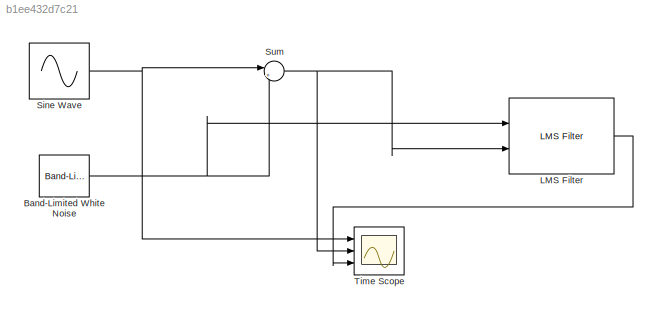
MODEL slx_b1ee432d7c21
KIND model
CONFIG AbsTol = auto
CONFIG EnableMultiTasking = off
CONFIG FixedStep = 0.001
CONFIG MaxStep = auto
CONFIG MinStep = auto
CONFIG RelTol = 1e-3
CONFIG SampleTimeConstraint = Unconstrained
CONFIG SolverName = FixedStepDiscrete
CONFIG StartTime = 0.0
CONFIG StopTime = 10.0
BLOCK [Reference] Band-Limited White Noise  REF=simulink/Sources/Band-Limited
White Noise
  Ports = [0, 1]
  SourceBlock = simulink/Sources/Band-Limited\nWhite Noise
  SourceProductBaseCode = SL
  SourceType = Band-Limited White Noise.
BLOCK [Reference] LMS Filter  REF=dspadpt3/LMS Filter
  Ports = [2, 3]
  SourceBlock = dspadpt3/LMS Filter
  SourceProductBaseCode = DS
  SourceType = LMS Filter
BLOCK [Sin] Sine Wave
  Frequency = 2*pi*50
  Ports = [0, 1]
  SampleTime = 0.001
BLOCK [Sum] Sum
  Inputs = |++
  Ports = [2, 1]
BLOCK [Scope] Time Scope
  DefaultConfigurationName = spbscopes.TimeScopeBlockCfg
  Floating = off
  NumInputPorts = 3
  Ports = [3]
  ScopeSpecificationString = spbscopes.TimeScopeBlockCfg('CurrentConfiguration', extmgr.ConfigurationSet(extmgr.Configuration('Core','General UI',true,'FigureColor',[0.156862745098039 0.156862745098039 0.156862745098039]),extmgr.Configuration('Core','Source UI',true),extmgr.Configuration('Sources','WiredSimulink',true),extmgr.Configuration('Visuals','Time Domain',true,'DisplayLayoutDimensions',[3 1],'DisplayPropertyDefaults',...<+4022ch>
  UserDataPersistent = on
NET Band-Limited White Noise:1 -> LMS Filter:1, Sum:2
LINE LMS Filter:2 -> Time Scope:3
NET Sine Wave:1 -> Sum:1, Time Scope:1
NET Sum:1 -> LMS Filter:2, Time Scope:2
note: NET lines group one-source signal fan-out (src -> all destinations, sorted); 1:1 wires keep LINE
